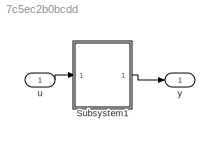
MODEL slx_7c5ec2b0bcdd
KIND model
CONFIG AbsTol = auto
CONFIG EnableMultiTasking = off
CONFIG FixedStep = auto
CONFIG MaxStep = auto
CONFIG MinStep = auto
CONFIG RelTol = 1e-3
CONFIG SampleTimeConstraint = Unconstrained
CONFIG SolverName = VariableStepAuto
CONFIG StartTime = 0.0
CONFIG StopTime = 6
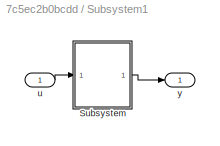
BLOCK [SubSystem] Subsystem1
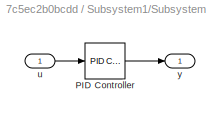
BLOCK [SubSystem] Subsystem1/Subsystem
BLOCK [Reference] Subsystem1/Subsystem/PID Controller  REF=slpidlib/PID Controller
  LibrarySourceBlock = simulink/Continuous/PID Controller
  SourceBlock = slpidlib/PID Controller
  SourceType = PID 1dof
BLOCK [Inport] Subsystem1/Subsystem/u
BLOCK [Outport] Subsystem1/Subsystem/y
BLOCK [Inport] Subsystem1/u
BLOCK [Outport] Subsystem1/y
BLOCK [Inport] u
  OutDataTypeStr = double
  PortDimensions = 1
  SampleTime = 0
  SamplingMode = Sample based
  SignalType = real
BLOCK [Outport] y
  OutDataTypeStr = double
  PortDimensions = 1
  SampleTime = 0
  SamplingMode = Sample based
  SignalType = real
LINE Subsystem1/Subsystem/PID Controller:1 -> Subsystem1/Subsystem/y:1
LINE Subsystem1/Subsystem/u:1 -> Subsystem1/Subsystem/PID Controller:1
LINE Subsystem1/Subsystem:1 -> Subsystem1/y:1
LINE Subsystem1/u:1 -> Subsystem1/Subsystem:1
LINE Subsystem1:1 -> y:1
LINE u:1 -> Subsystem1:1
